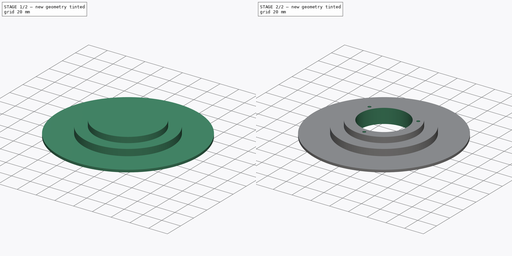
[diagram: build sequence overview — one tinted view per stage of 2, left to right]
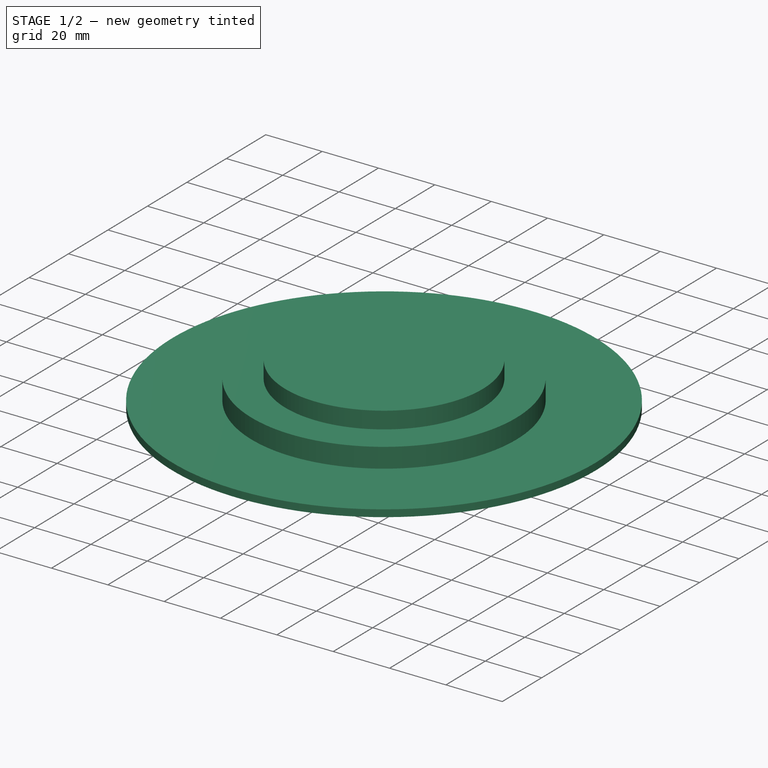
[diagram: stage 1 of 2 — iso view after this stage's code; geometry added in this stage tinted green]
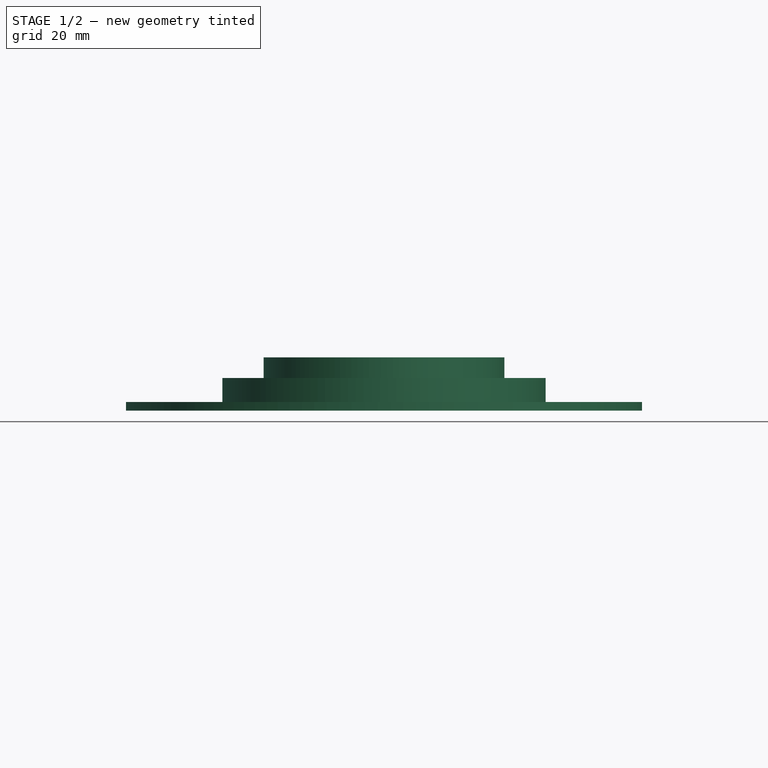
[diagram: stage 1 of 2 — front view after this stage's code; geometry added in this stage tinted green]
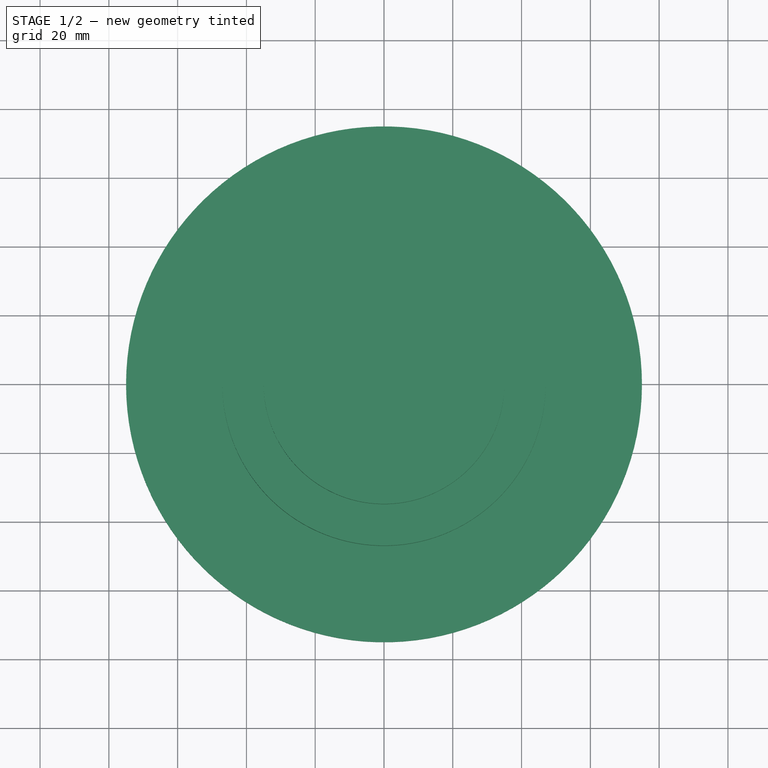
[diagram: stage 1 of 2 — top view after this stage's code; geometry added in this stage tinted green]
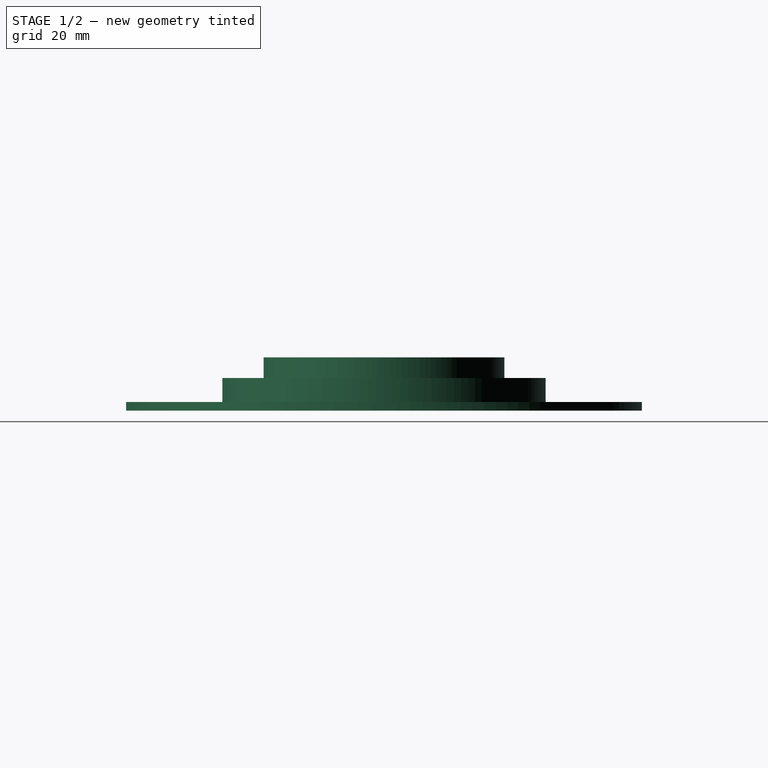
[diagram: stage 1 of 2 — right view after this stage's code; geometry added in this stage tinted green]
FCSTD DOCUMENT  (FreeCAD 0.16RUnknown)
Label: Art1TopP1
License: All rights reserved
LicenseURL: http://en.wikipedia.org/wiki/All_rights_reserved
objects: Sketcher::SketchObject×2, PartDesign::Revolution×1, PartDesign::Pocket×1
note: 6 computed .brp shape members not serialized (recipe doc carries the construction recipe); baked Part::Feature solids carry a one-line shape summary decoded from their .brp

FEATURE [Sketcher::SketchObject] Sketch
  Placement = pos=(0,0,0) rot=(-1,0,0;4.71239rad)
  sketch-geometry (8):
    g0: LineSegment StartX=0 StartY=15.5 StartZ=0 EndX=35 EndY=15.5 EndZ=0
    g1: LineSegment StartX=35 StartY=15.5 StartZ=0 EndX=35 EndY=9.5 EndZ=0
    g2: LineSegment StartX=35 StartY=9.5 StartZ=0 EndX=47 EndY=9.5 EndZ=0
    g3: LineSegment StartX=47 StartY=9.5 StartZ=0 EndX=47 EndY=2.5 EndZ=0
    g4: LineSegment StartX=47 StartY=2.5 StartZ=0 EndX=75 EndY=2.5 EndZ=0
    g5: LineSegment StartX=75 StartY=2.5 StartZ=0 EndX=75 EndY=0 EndZ=0
    g6: LineSegment StartX=75 StartY=0 StartZ=0 EndX=0 EndY=0 EndZ=0
    g7: LineSegment StartX=0 StartY=0 StartZ=0 EndX=0 EndY=15.5 EndZ=0
  constraints (24):
    c: PointOnObject(g0,g-2)
    c: Horizontal(g0)
    c: Coincident(g0,g1)
    c: Vertical(g1)
    c: Coincident(g1,g2)
    c: Horizontal(g2)
    c: Coincident(g2,g3)
    c: Vertical(g3)
    c: Coincident(g3,g4)
    c: Horizontal(g4)
    c: Coincident(g4,g5)
    c: Coincident(g5,g6)
    c: Horizontal(g6)
    c: Coincident(g6,g7)
    c: Coincident(g7,g0)
    c: Vertical(g7)
    c: Coincident(g6,g-1)
    c: Vertical(g5)
    c: DistanceX(g5) = 75
    c: DistanceX(g3) = 47
    c: DistanceX(g1) = 35
    c: DistanceY(g5,g5) = 2.5
    c: DistanceY(g3,g3) = 7
    c: DistanceY(g1,g1) = 6
FEATURE [PartDesign::Revolution] Revolution  label="base"
  Angle = 360
  Axis = (0,0,1)
  Base = (0,0,0)
  Placement = pos=(0,0,0) rot=(-1,0,0;4.71239rad)
  ReferenceAxis = -> Sketch [V_Axis]
  Reversed = true
  Sketch = -> Sketch
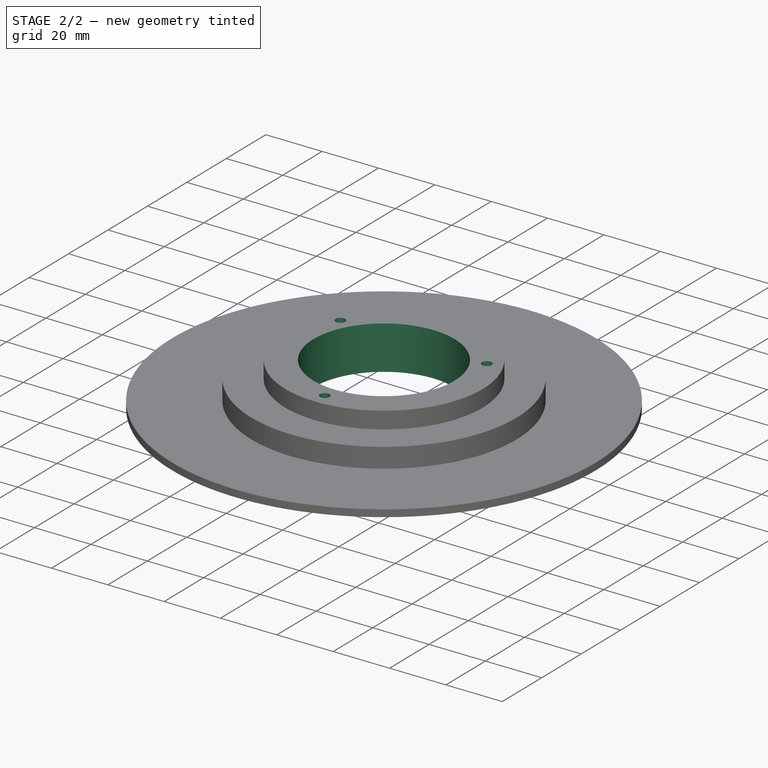
[diagram: stage 2 of 2 — iso view after this stage's code; geometry added in this stage tinted green]
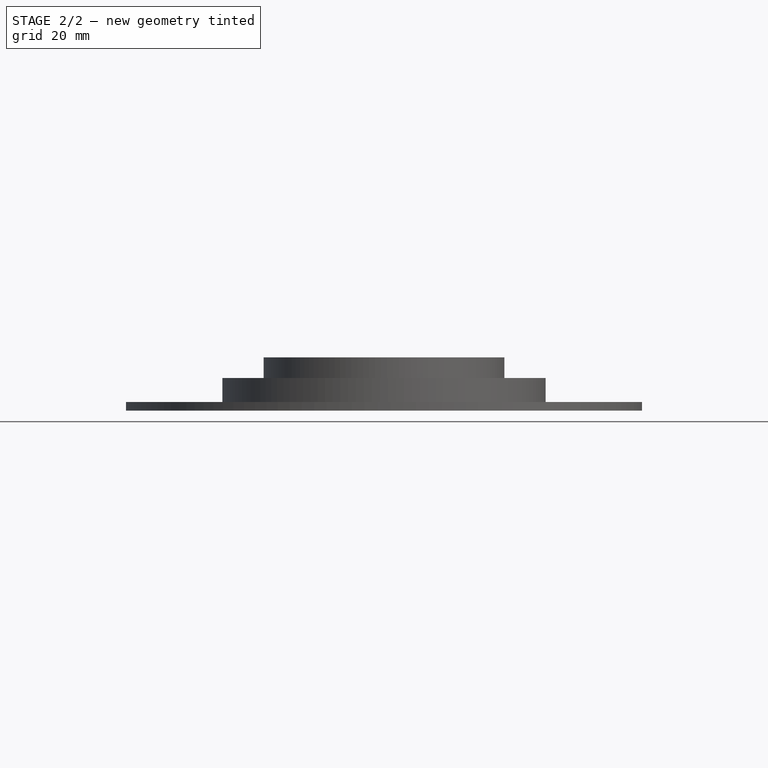
[diagram: stage 2 of 2 — front view after this stage's code; geometry added in this stage tinted green]
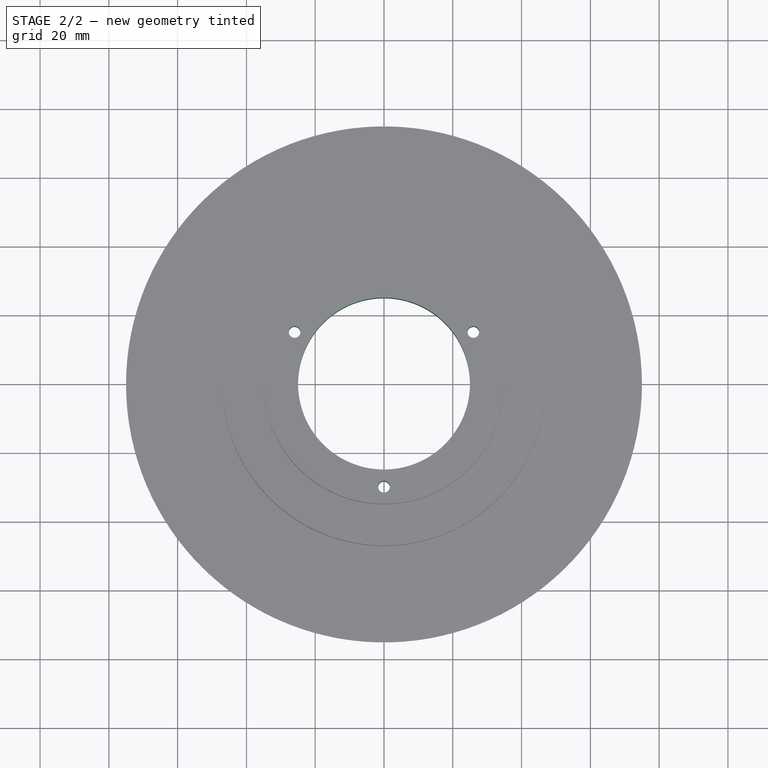
[diagram: stage 2 of 2 — top view after this stage's code; geometry added in this stage tinted green]
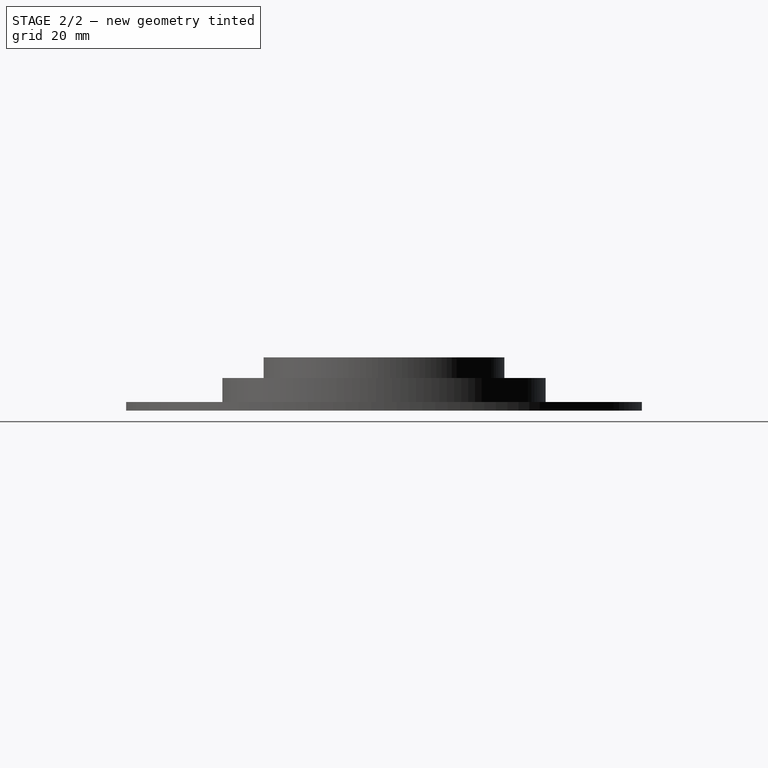
[diagram: stage 2 of 2 — right view after this stage's code; geometry added in this stage tinted green]
FEATURE [Sketcher::SketchObject] Sketch001
  Placement = pos=(0,0,15.5) rot=(0,0,1;3.14159rad)
  Support = -> Revolution [Face1]
  sketch-geometry (7):
    g0: Circle CenterX=0 CenterY=0 CenterZ=0 NormalX=0 NormalY=0 NormalZ=1 Radius=25
    g1: Circle [constr] CenterX=0 CenterY=0 CenterZ=0 NormalX=0 NormalY=0 NormalZ=1 Radius=30
    g2: Circle CenterX=0 CenterY=30 CenterZ=0 NormalX=0 NormalY=0 NormalZ=1 Radius=1.7
    g3: Circle CenterX=25.9808 CenterY=-15 CenterZ=0 NormalX=0 NormalY=0 NormalZ=1 Radius=1.7
    g4: Circle CenterX=-25.9808 CenterY=-15 CenterZ=0 NormalX=0 NormalY=0 NormalZ=1 Radius=1.7
    g5: LineSegment [constr] StartX=0 StartY=0 StartZ=0 EndX=-25.9808 EndY=-15 EndZ=0
    g6: LineSegment [constr] StartX=0 StartY=0 StartZ=0 EndX=25.9808 EndY=-15 EndZ=0
  constraints (17):
    c: Coincident(g0,g-1)
    c: Radius(g0) = 25
    c: Radius(g1) = 30
    c: PointOnObject(g2,g1)
    c: PointOnObject(g3,g1)
    c: PointOnObject(g4,g1)
    c: Equal(g2,g3)
    c: Equal(g3,g4)
    c: Radius(g2) = 1.7
    c: Coincident(g0,g1)
    c: PointOnObject(g2,g-2)
    c: Coincident(g5,g-1)
    c: Coincident(g5,g4)
    c: Coincident(g6,g-1)
    c: Coincident(g6,g3)
    c: Angle(g-2,g5) = 2.0944
    c: Angle(g6,g-2) = 2.0944
FEATURE [PartDesign::Pocket] Pocket  label="holes"
  Length = 5
  Placement = pos=(0,0,0) rot=(-1,0,0;4.71239rad)
  Sketch = -> Sketch001
  Type = 1
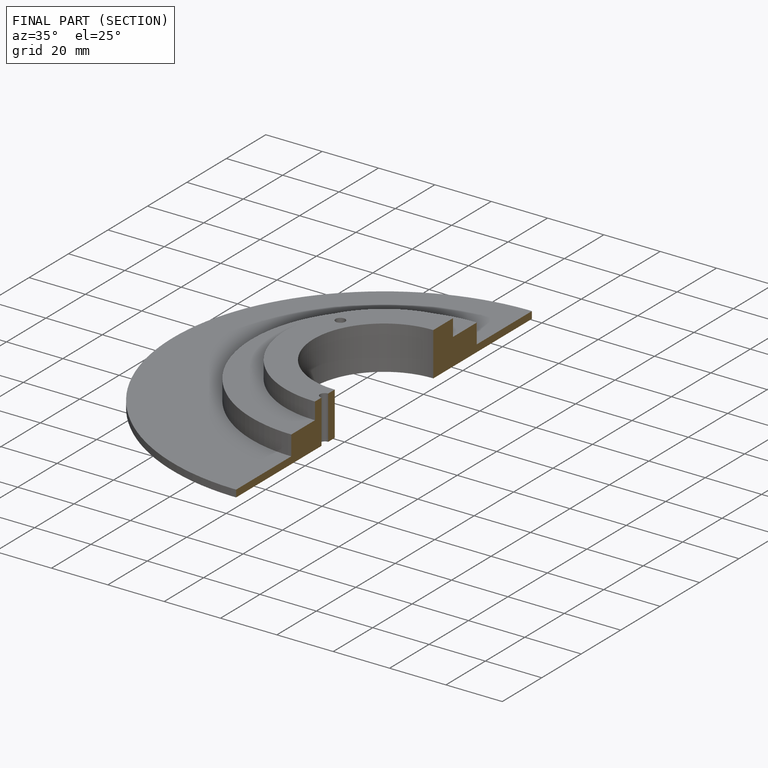
[diagram: finished part — half-section view (interior)]
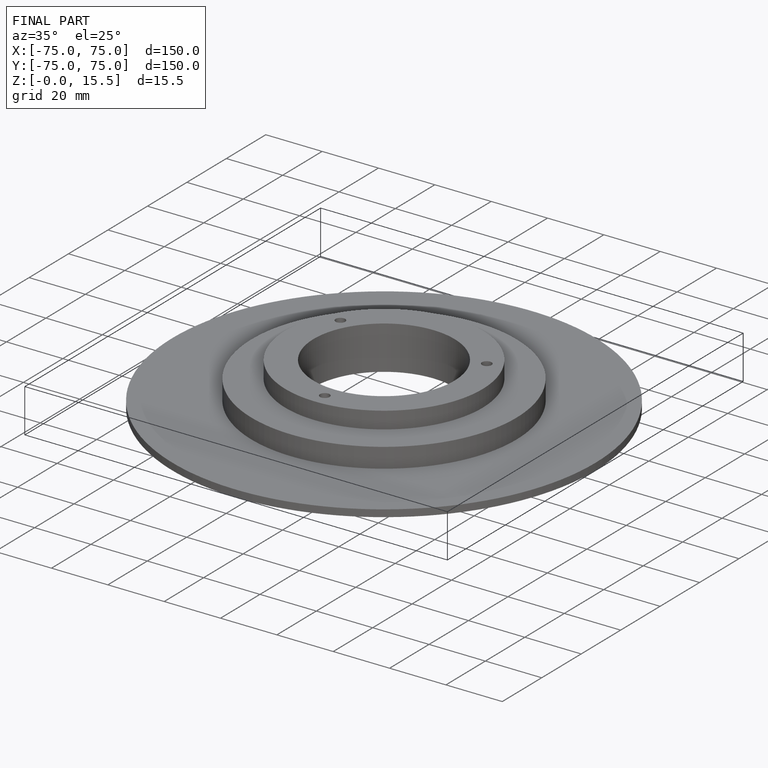
[diagram: finished part — iso view with bounding-box wireframe]
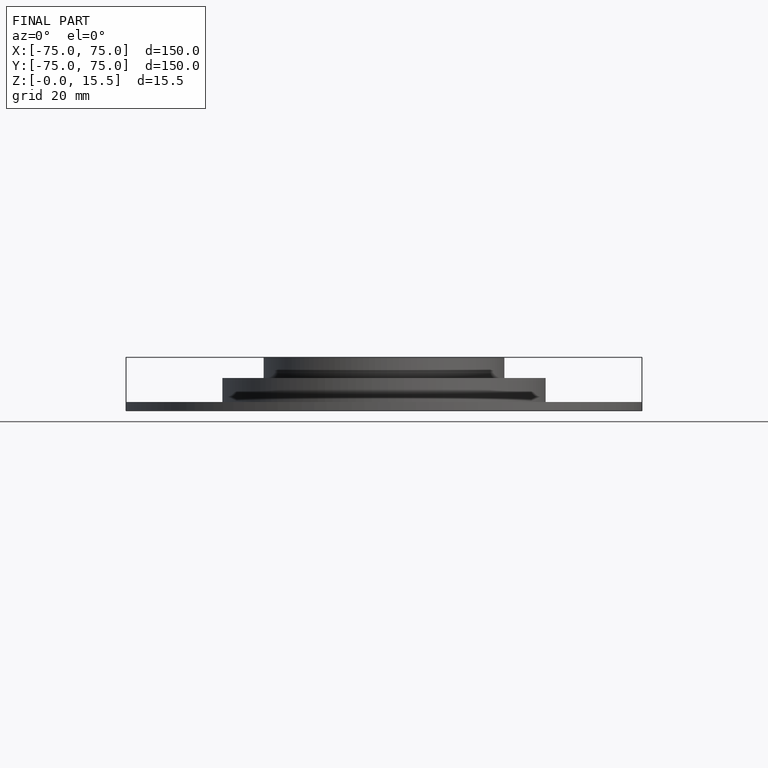
[diagram: finished part — front view with bounding-box wireframe]
